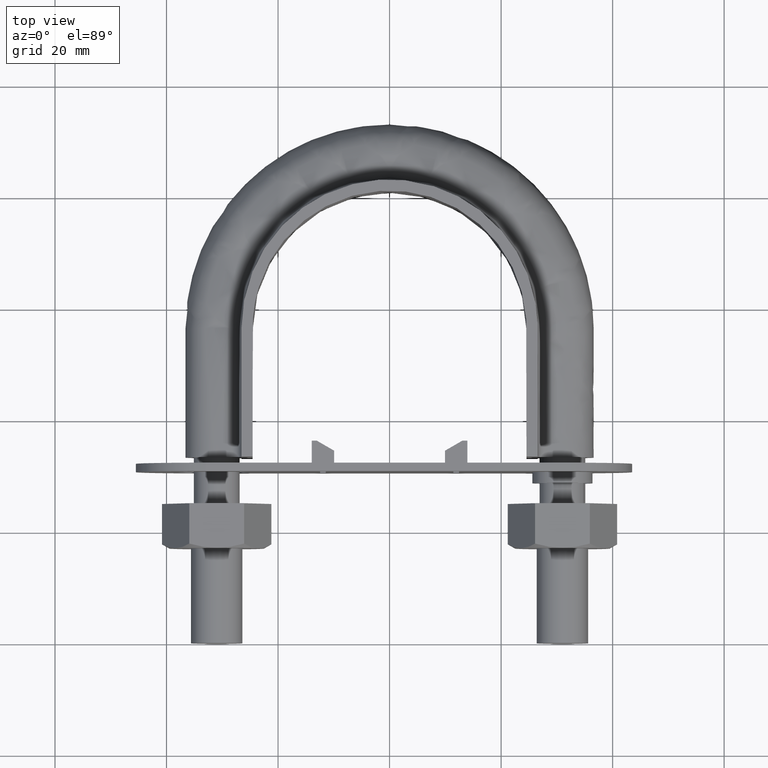
[diagram: clean part render]
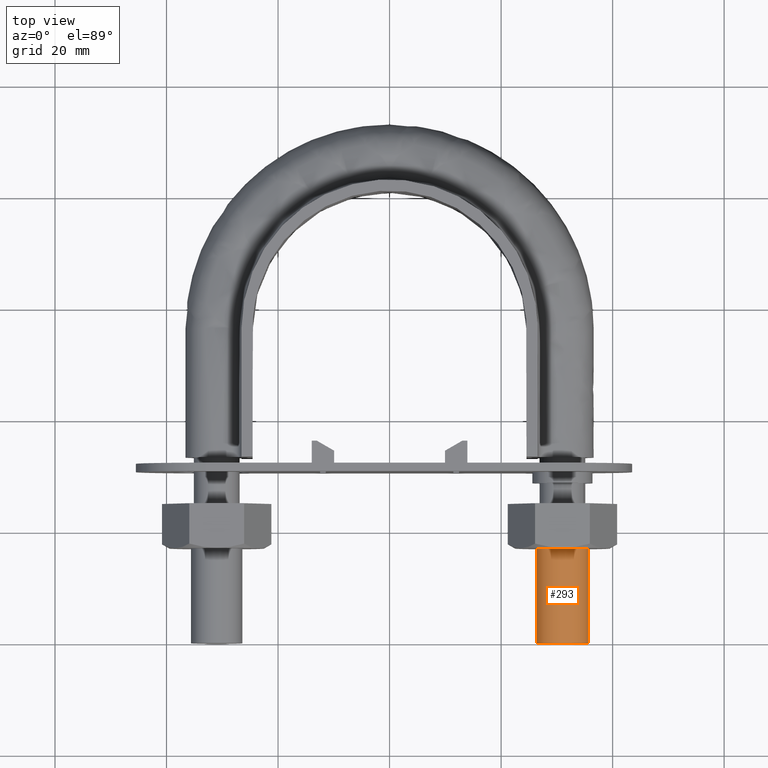
[diagram: same view with one face highlighted and labeled with its STEP entity id]
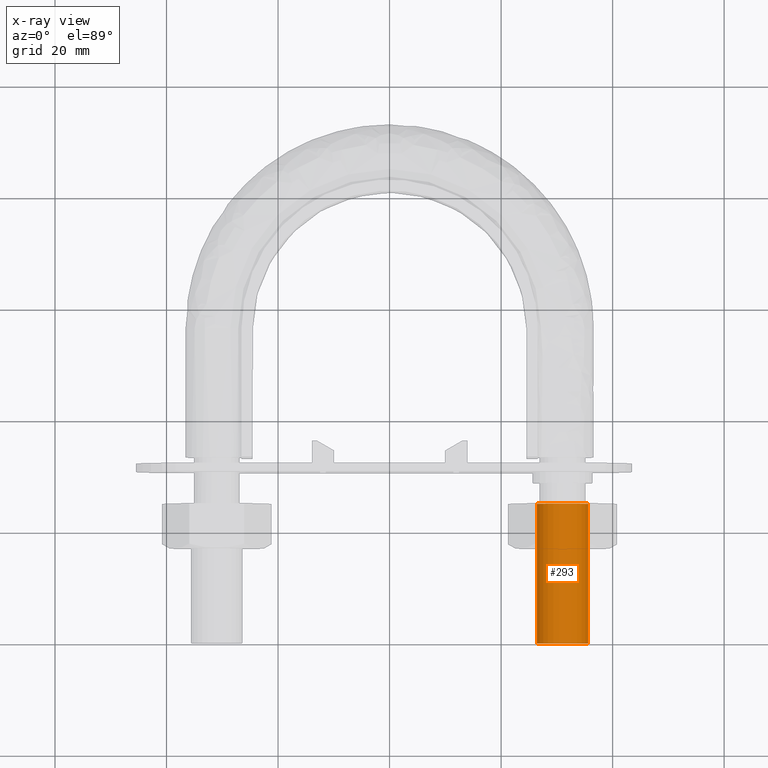
[diagram: x-ray of the same camera — body ghosted, the highlighted face saturated]
A machine part, top view. The second image highlights one B-rep face of the part: STEP entity #293.
The next image is the same camera in x-ray: the body ghosted, the highlighted face saturated — about 0% of this face is hidden behind the body in this view.
In plain terms, the highlighted cylindrical surface (bore or boss wall) has radius 4.6 mm, axis along (-0, -1, -0).
Its self-contained STEP definition (entity closure, byte-faithful):
#293 = ADVANCED_FACE( '', ( #441, #442 ), #443, .T. );
#441 = FACE_OUTER_BOUND( '', #1523, .T. );
#442 = FACE_OUTER_BOUND( '', #1524, .T. );
#443 = CYLINDRICAL_SURFACE( '', #1525, 4.60000000000000 );
#1523 = EDGE_LOOP( '', ( #1893 ) );
#1524 = EDGE_LOOP( '', ( #1894 ) );
#1525 = AXIS2_PLACEMENT_3D( '', #1895, #1896, #1897 );
#1893 = ORIENTED_EDGE( '', *, *, #2591, .F. );
#1894 = ORIENTED_EDGE( '', *, *, #2592, .T. );
#1895 = CARTESIAN_POINT( '', ( 31.0000000000000, 25.0000000000000, 7.85278824388599E-015 ) );
#1896 = DIRECTION( '', ( -2.44921270764475E-016, -1.00000000000000, -3.06151588455594E-016 ) );
#1897 = DIRECTION( '', ( 1.00000000000000, -2.44921270764475E-016, -3.74915180455534E-032 ) );
#2591 = EDGE_CURVE( '', #2859, #2859, #2860, .T. );
#2592 = EDGE_CURVE( '', #2861, #2861, #2862, .T. );
#2859 = VERTEX_POINT( '', #3497 );
#2860 = CIRCLE( '', #3498, 4.60000000000000 );
#2861 = VERTEX_POINT( '', #3499 );
#2862 = CIRCLE( '', #3500, 4.60000000000000 );
#3497 = CARTESIAN_POINT( '', ( 35.6000000000000, -8.71919723921533E-015, 1.98998532496135E-016 ) );
#3498 = AXIS2_PLACEMENT_3D( '', #4109, #4110, #4111 );
#3499 = CARTESIAN_POINT( '', ( 35.6000000000000, 25.0000000000000, 7.85278824388599E-015 ) );
#3500 = AXIS2_PLACEMENT_3D( '', #4112, #4113, #4114 );
#4109 = CARTESIAN_POINT( '', ( 31.0000000000000, -7.59255939369874E-015, 1.98998532496135E-016 ) );
#4110 = DIRECTION( '', ( -2.44921270764475E-016, -1.00000000000000, -3.06151588455594E-016 ) );
#4111 = DIRECTION( '', ( 1.00000000000000, -2.44921270764475E-016, -3.74915180455534E-032 ) );
#4112 = CARTESIAN_POINT( '', ( 31.0000000000000, 25.0000000000000, 7.85278824388599E-015 ) );
#4113 = DIRECTION( '', ( -2.44921270764475E-016, -1.00000000000000, -3.06151588455594E-016 ) );
#4114 = DIRECTION( '', ( 1.00000000000000, -2.44921270764475E-016, -3.74915180455534E-032 ) );